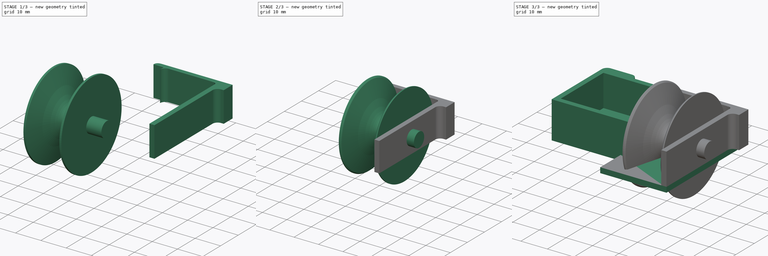
[diagram: build sequence overview — one tinted view per stage of 3, left to right]
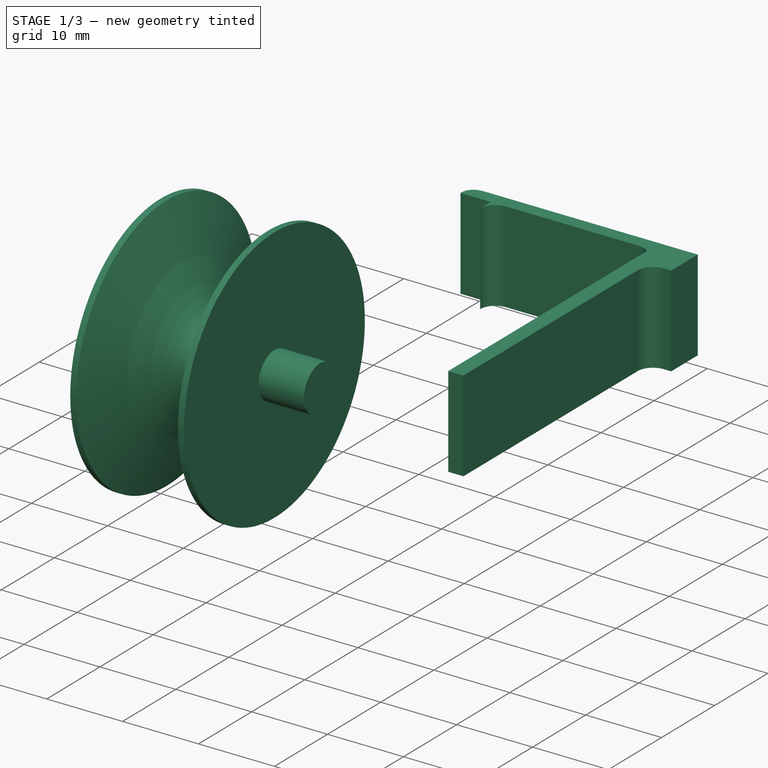
[diagram: stage 1 of 3 — iso view after this stage's code; geometry added in this stage tinted green]
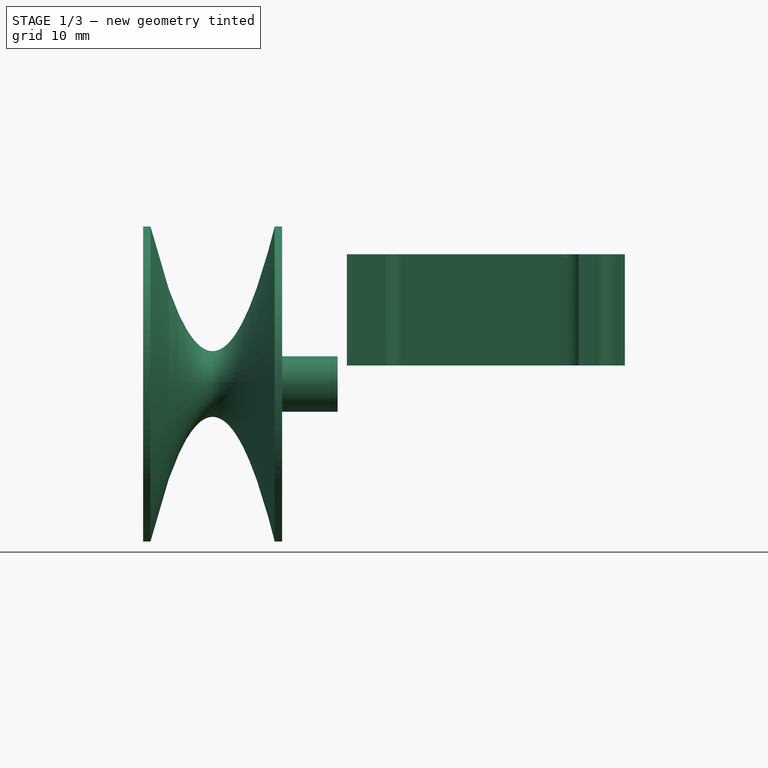
[diagram: stage 1 of 3 — front view after this stage's code; geometry added in this stage tinted green]
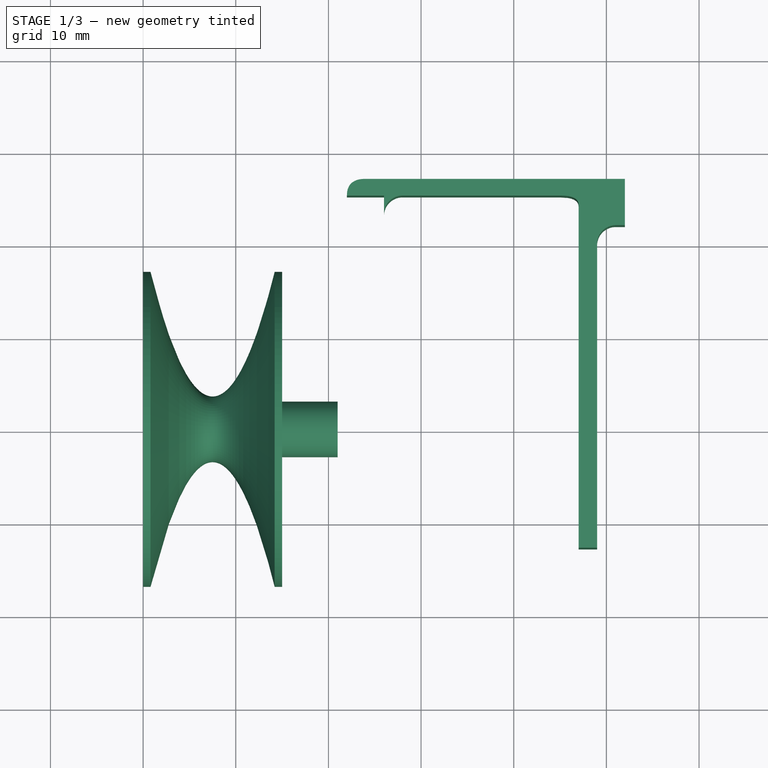
[diagram: stage 1 of 3 — top view after this stage's code; geometry added in this stage tinted green]
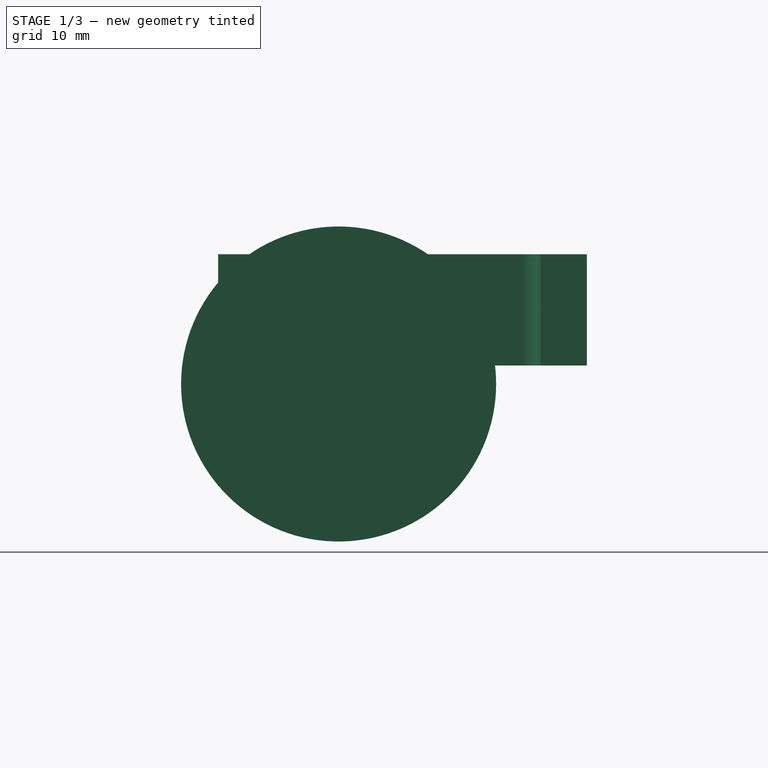
[diagram: stage 1 of 3 — right view after this stage's code; geometry added in this stage tinted green]
FCSTD DOCUMENT  (FreeCAD 0.20R0.20)
Label: 013
License: All rights reserved
LicenseURL: http://en.wikipedia.org/wiki/All_rights_reserved
objects: Sketcher::SketchObject×4, Part::Extrusion×3, Part::Revolution×1, Part::Chamfer×1
note: 9 computed .brp shape members not serialized (recipe doc carries the construction recipe); baked Part::Feature solids carry a one-line shape summary decoded from their .brp

FEATURE [Sketcher::SketchObject] Sketch002  label="pully"
  FullyConstrained = true
  sketch-geometry (14):
    g0: LineSegment StartX=0 StartY=0 StartZ=0 EndX=15 EndY=0 EndZ=0
    g1: LineSegment StartX=0 StartY=0 StartZ=0 EndX=0 EndY=17 EndZ=0
    g2: LineSegment StartX=0 StartY=17 StartZ=0 EndX=0.8 EndY=17 EndZ=0
    g3: LineSegment StartX=15 StartY=17 StartZ=0 EndX=14.2 EndY=17 EndZ=0
    g4: Circle CenterX=0.8 CenterY=17 CenterZ=0 NormalX=0 NormalY=0 NormalZ=1 AngleXU=0 Radius=1
    g5: Circle CenterX=7.5 CenterY=-9.9 CenterZ=0 NormalX=0 NormalY=0 NormalZ=1 AngleXU=0 Radius=1
    g6: Circle CenterX=14.2 CenterY=17 CenterZ=0 NormalX=0 NormalY=0 NormalZ=1 AngleXU=0 Radius=1
    g7: BSplineCurve PolesCount=3 KnotsCount=2 Degree=2 IsPeriodic=0
    g8: GeomPoint X=0.8 Y=17 Z=0
    g9: GeomPoint X=14.2 Y=17 Z=0
    g10: LineSegment StartX=15 StartY=17 StartZ=0 EndX=15 EndY=3 EndZ=0
    g11: LineSegment StartX=15 StartY=0 StartZ=0 EndX=21 EndY=0 EndZ=0
    g12: LineSegment StartX=15 StartY=3 StartZ=0 EndX=21 EndY=3 EndZ=0
    g13: LineSegment StartX=21 StartY=3 StartZ=0 EndX=21 EndY=0 EndZ=0
  constraints (34):
    c: Coincident(g0,g-1)
    c: PointOnObject(g0,g-1)
    c: Distance(g0) = 15
    c: Coincident(g1,g0)
    c: Vertical(g1)
    c: Distance(g1) = 17
    c: Coincident(g2,g1)
    c: Horizontal(g2)
    c: Distance(g2) = 0.8
    c: Horizontal(g3)
    c: Distance(g3) = 0.8
    c: Weight(g4) = 1
    c: Coincident(g7,g2)
    c: Equal(g4,g5)
    c: Equal(g4,g6)
    c: Coincident(g7,g3)
    c: InternalAlignment(g4,g7)
    c: InternalAlignment(g5,g7)
    c: InternalAlignment(g6,g7)
    c: InternalAlignment(g8,g7)
    c: InternalAlignment(g9,g7)
    c: Block(g7)
    c: Coincident(g10,g3)
    c: Vertical(g10)
    c: Coincident(g11,g0)
    c: Horizontal(g11)
    c: Block(g10)
    c: Coincident(g12,g10)
    c: Horizontal(g12)
    c: Distance(g12) = 6
    c: Distance(g11) = 6
    c: Coincident(g13,g12)
    c: Coincident(g13,g11)
    c: Vertical(g13)
FEATURE [Part::Revolution] Revolve  label="pully001"
  Angle = 360
  Axis = (1,0,0)
  Base = (0,0,0)
  FaceMakerClass = Part::FaceMakerBullseye
  Solid = true
  Source = -> Sketch002
  Symmetric = false
FEATURE [Sketcher::SketchObject] Sketch003  label="pullyHolderAndSprintBarrier"
  FullyConstrained = true
  sketch-geometry (23):
    g0: Circle CenterX=21.9972 CenterY=25 CenterZ=0 NormalX=0 NormalY=0 NormalZ=1 AngleXU=0 Radius=1
    g1: Circle CenterX=21.9972 CenterY=26.8 CenterZ=0 NormalX=0 NormalY=0 NormalZ=1 AngleXU=0 Radius=1
    g2: Circle CenterX=23.9972 CenterY=26.8 CenterZ=0 NormalX=0 NormalY=0 NormalZ=1 AngleXU=0 Radius=1
    g3: BSplineCurve PolesCount=3 KnotsCount=2 Degree=2 IsPeriodic=0
    g4: GeomPoint X=21.9972 Y=25 Z=0
    g5: GeomPoint X=23.9972 Y=26.8 Z=0
    g6: ArcOfCircle CenterX=27.9972 CenterY=23 CenterZ=0 NormalX=0 NormalY=0 NormalZ=1 AngleXU=0 Radius=2 StartAngle=1.5708 EndAngle=3.14159
    g7: Circle CenterX=44.9972 CenterY=25 CenterZ=0 NormalX=0 NormalY=0 NormalZ=1 AngleXU=0 Radius=1
    g8: Circle CenterX=46.9972 CenterY=25 CenterZ=0 NormalX=0 NormalY=0 NormalZ=1 AngleXU=0 Radius=1
    g9: Circle CenterX=46.9972 CenterY=24 CenterZ=0 NormalX=0 NormalY=0 NormalZ=1 AngleXU=0 Radius=1
    g10: BSplineCurve PolesCount=3 KnotsCount=2 Degree=2 IsPeriodic=0
    g11: GeomPoint X=44.9972 Y=25 Z=0
    g12: GeomPoint X=46.9972 Y=24 Z=0
    g13: LineSegment StartX=46.9972 StartY=-13 StartZ=0 EndX=48.9972 EndY=-13 EndZ=0
    g14: LineSegment StartX=23.9972 StartY=26.8 StartZ=0 EndX=51.9972 EndY=26.8 EndZ=0
    g15: LineSegment StartX=21.9972 StartY=25 StartZ=0 EndX=25.9972 EndY=25 EndZ=0
    g16: LineSegment StartX=25.9972 StartY=25 StartZ=0 EndX=25.9972 EndY=23 EndZ=0
    g17: LineSegment StartX=44.9972 StartY=25 StartZ=0 EndX=27.9972 EndY=25 EndZ=0
    g18: LineSegment StartX=46.9972 StartY=24 StartZ=0 EndX=46.9972 EndY=-13 EndZ=0
    g19: LineSegment StartX=51.9972 StartY=26.8 StartZ=0 EndX=51.9972 EndY=21.8 EndZ=0
    g20: ArcOfCircle CenterX=50.9972 CenterY=19.8 CenterZ=0 NormalX=0 NormalY=0 NormalZ=1 AngleXU=0 Radius=2 StartAngle=1.5708 EndAngle=3.14159
    g21: LineSegment StartX=50.9972 StartY=21.8 StartZ=0 EndX=51.9972 EndY=21.8 EndZ=0
    g22: LineSegment StartX=48.9972 StartY=19.8 StartZ=0 EndX=48.9972 EndY=-13 EndZ=0
  constraints (46):
    c: Weight(g0) = 1
    c: Equal(g0,g1)
    c: Equal(g0,g2)
    c: InternalAlignment(g0,g3)
    c: InternalAlignment(g1,g3)
    c: InternalAlignment(g2,g3)
    c: InternalAlignment(g4,g3)
    c: InternalAlignment(g5,g3)
    c: Block(g3)
    c: Block(g6)
    c: Weight(g7) = 1
    c: Equal(g7,g8)
    c: Equal(g7,g9)
    c: InternalAlignment(g7,g10)
    c: InternalAlignment(g8,g10)
    c: InternalAlignment(g9,g10)
    c: InternalAlignment(g11,g10)
    c: InternalAlignment(g12,g10)
    c: Block(g10)
    c: Horizontal(g13)
    c: Coincident(g14,g3)
    c: Horizontal(g14)
    c: Block(g14)
    c: Coincident(g15,g3)
    c: Horizontal(g15)
    c: Block(g15)
    c: Coincident(g16,g15)
    c: Coincident(g16,g6)
    c: Vertical(g16)
    c: Coincident(g17,g10)
    c: Coincident(g17,g6)
    c: Horizontal(g17)
    c: Coincident(g18,g10)
    c: Coincident(g18,g13)
    c: Vertical(g18)
    c: Block(g13)
    c: Coincident(g19,g14)
    c: Vertical(g19)
    c: Block(g20)
    c: Block(g19)
    c: Coincident(g21,g20)
    c: Coincident(g21,g19)
    c: Horizontal(g21)
    c: Coincident(g22,g20)
    c: Coincident(g22,g13)
    c: Vertical(g22)
FEATURE [Part::Extrusion] Extrude002  label="pullyHolderAndSprintBarrier001"
  Base = -> Sketch003
  Dir = (0,0,1)
  DirMode = 2
  FaceMakerClass = Part::FaceMakerBullseye
  LengthFwd = 12
  LengthRev = 0
  Placement = pos=(0,0,2) rot=(0,0,1;0rad)
  Solid = true
  Symmetric = false
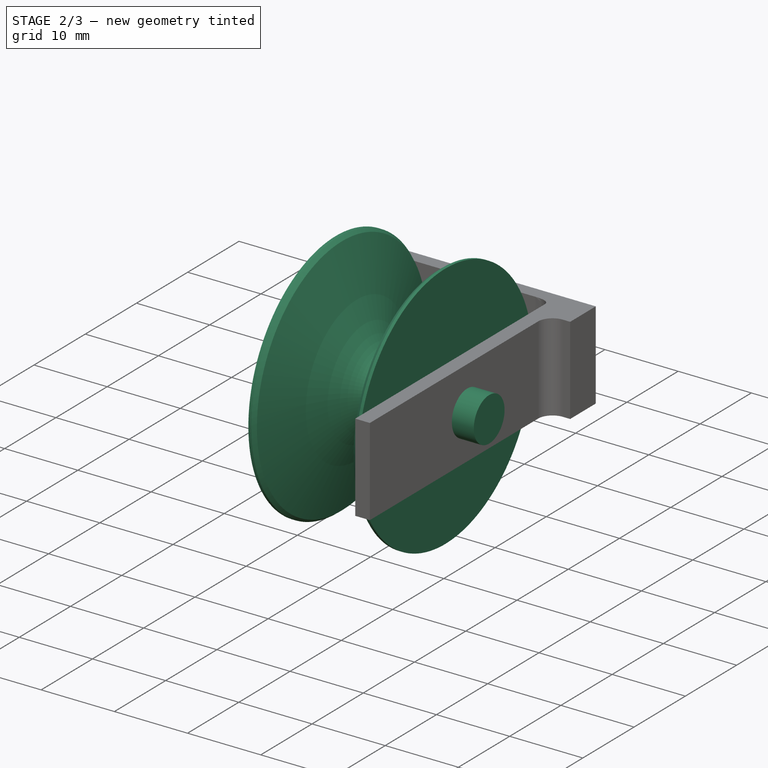
[diagram: stage 2 of 3 — iso view after this stage's code; geometry added in this stage tinted green]
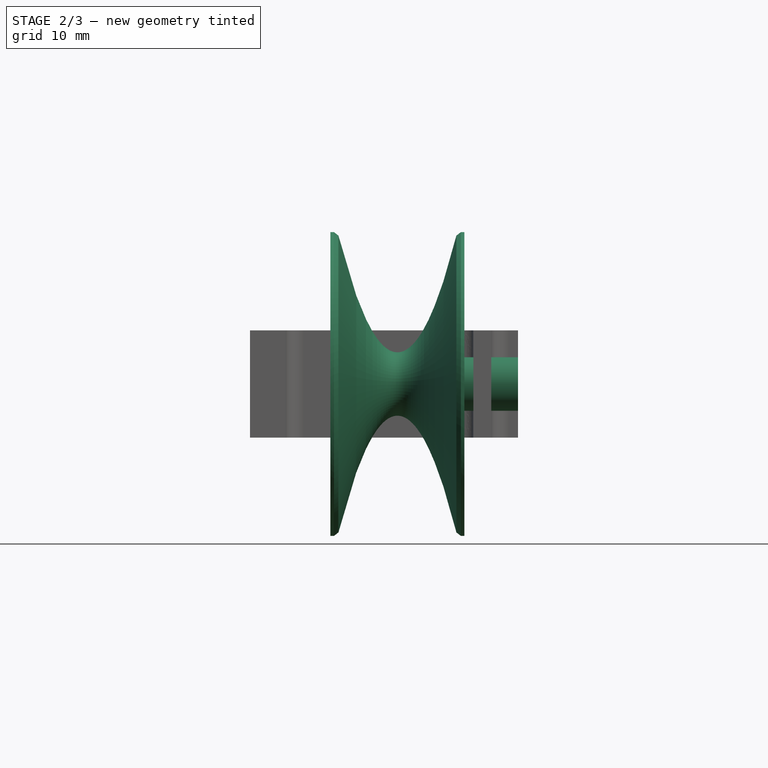
[diagram: stage 2 of 3 — front view after this stage's code; geometry added in this stage tinted green]
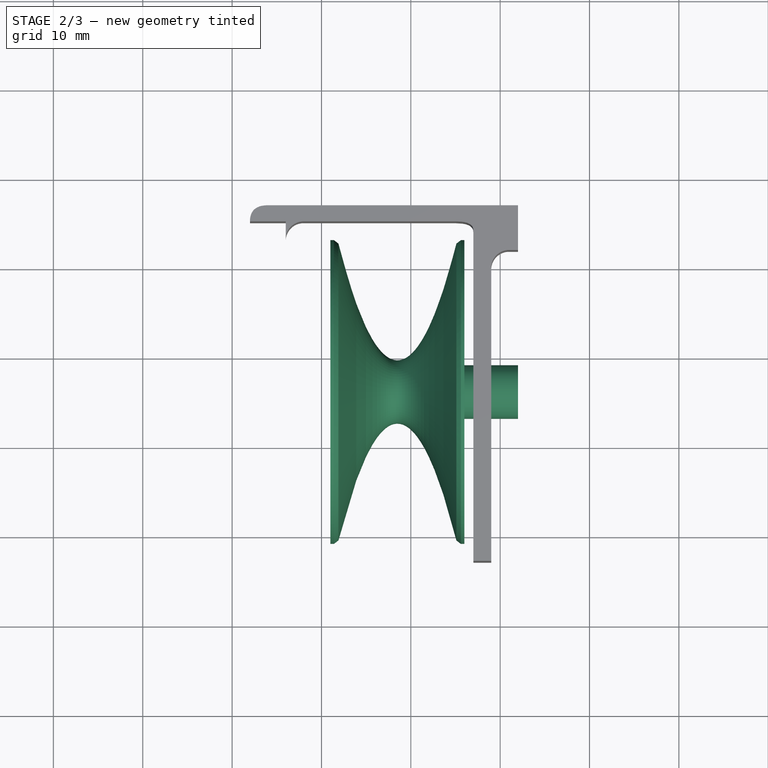
[diagram: stage 2 of 3 — top view after this stage's code; geometry added in this stage tinted green]
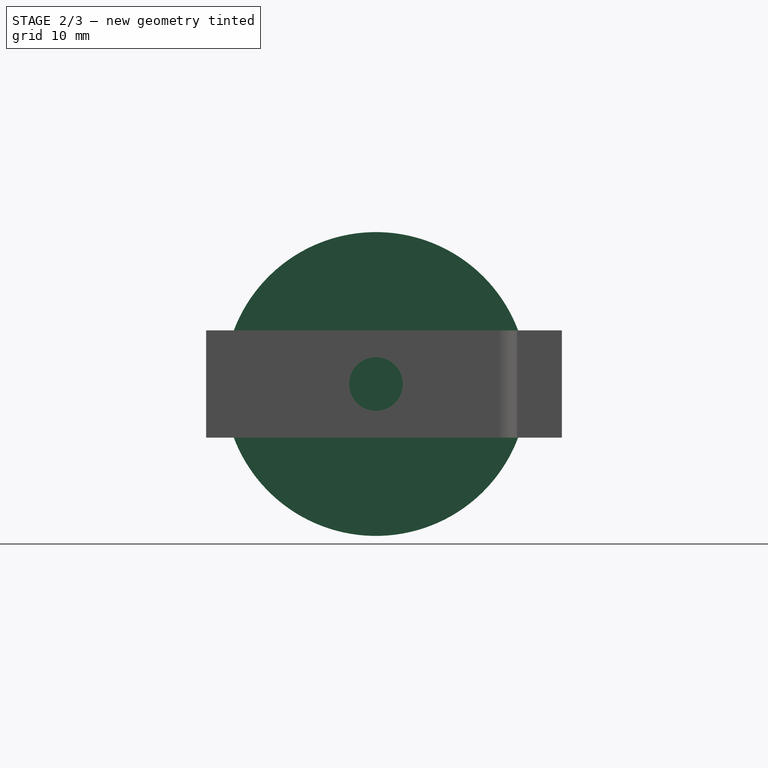
[diagram: stage 2 of 3 — right view after this stage's code; geometry added in this stage tinted green]
FEATURE [Part::Chamfer] Chamfer  label="pully002"
  Base = -> Revolve
  Edges = 2 edges r=0.4: [Edge2,Edge4]
  Placement = pos=(31,6,8) rot=(0,0,1;0rad)
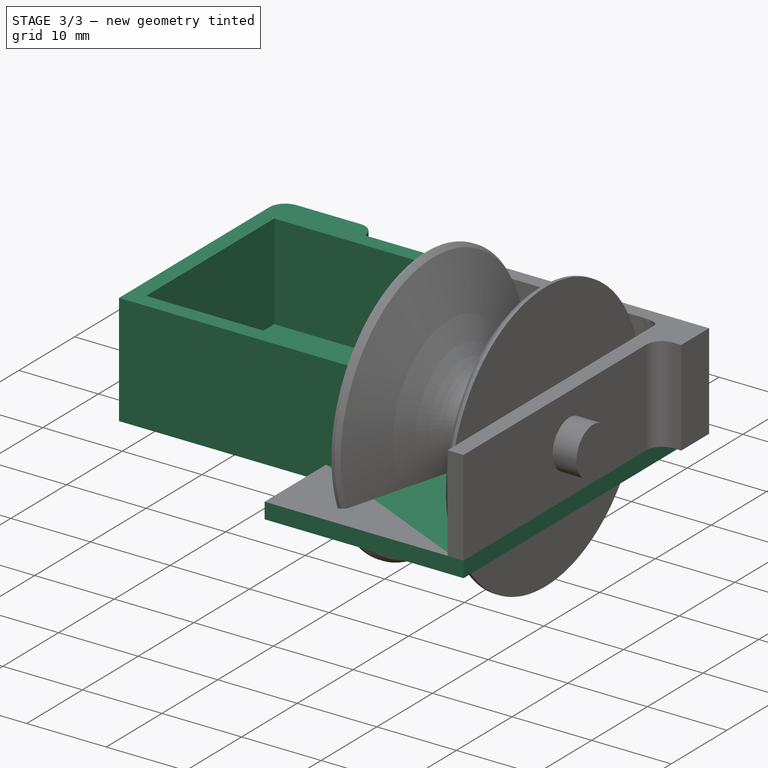
[diagram: stage 3 of 3 — iso view after this stage's code; geometry added in this stage tinted green]
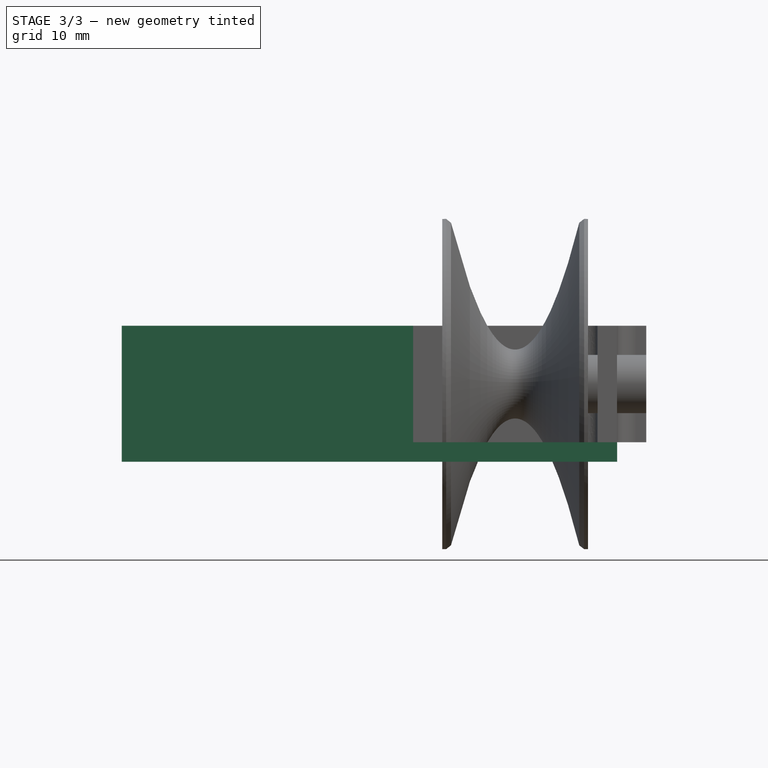
[diagram: stage 3 of 3 — front view after this stage's code; geometry added in this stage tinted green]
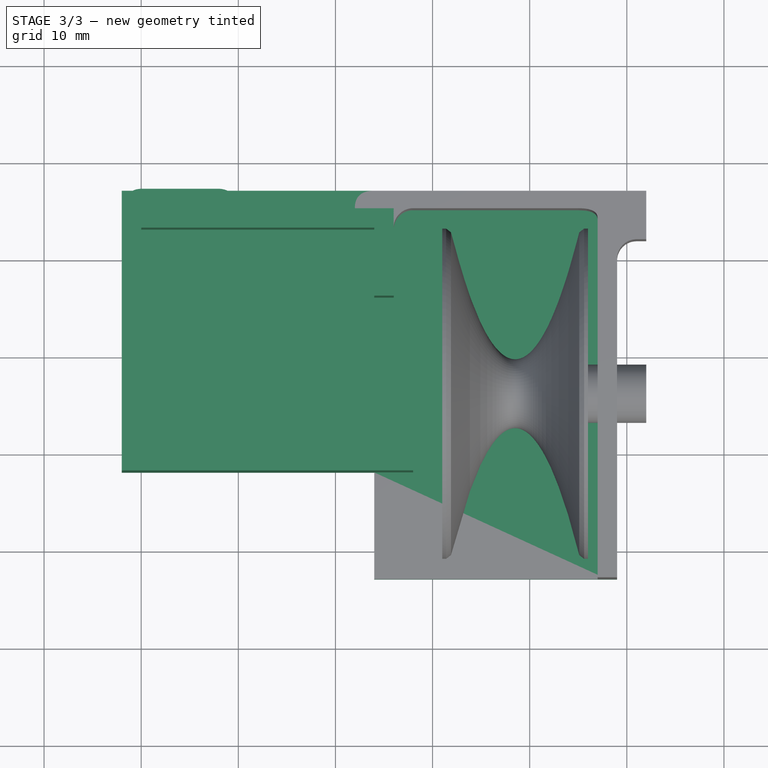
[diagram: stage 3 of 3 — top view after this stage's code; geometry added in this stage tinted green]
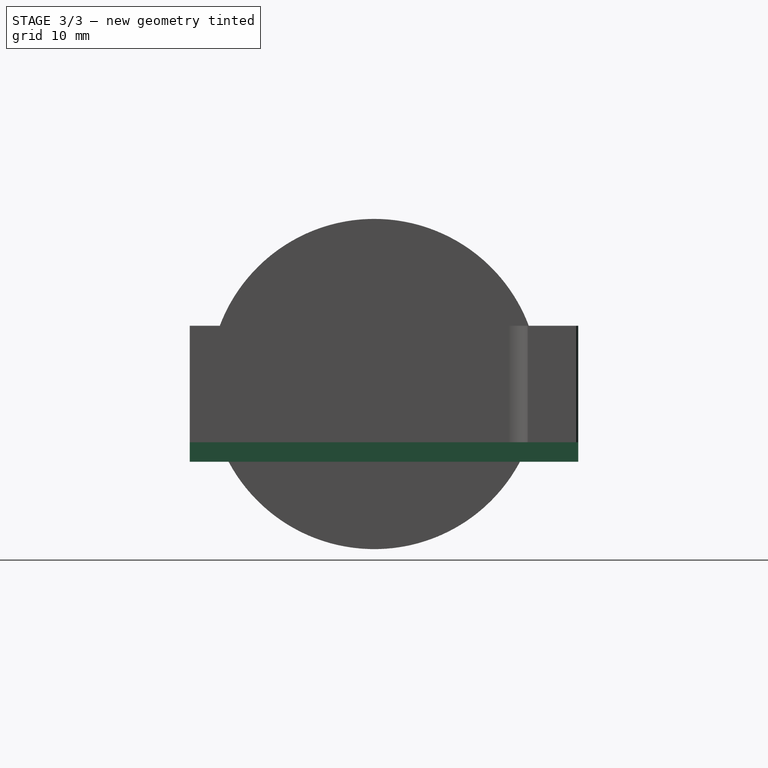
[diagram: stage 3 of 3 — right view after this stage's code; geometry added in this stage tinted green]
FEATURE [Sketcher::SketchObject] Sketch  label="servoHolder001"
  FullyConstrained = true
  sketch-geometry (13):
    g0: LineSegment StartX=0 StartY=0 StartZ=0 EndX=0 EndY=23 EndZ=0
    g1: LineSegment StartX=0 StartY=0 StartZ=0 EndX=28 EndY=0 EndZ=0
    g2: LineSegment StartX=0 StartY=23 StartZ=0 EndX=24 EndY=23 EndZ=0
    g3: LineSegment StartX=24 StartY=23 StartZ=0 EndX=24 EndY=16 EndZ=0
    g4: LineSegment StartX=28 StartY=0 StartZ=0 EndX=28 EndY=-2 EndZ=0
    g5: LineSegment StartX=28 StartY=-2 StartZ=0 EndX=-2 EndY=-2 EndZ=0
    g6: LineSegment StartX=-2 StartY=-2 StartZ=0 EndX=-2 EndY=25 EndZ=0
    g7: LineSegment StartX=10 StartY=25 StartZ=0 EndX=26 EndY=25 EndZ=0
    g8: LineSegment StartX=26 StartY=25 StartZ=0 EndX=26 EndY=16 EndZ=0
    g9: LineSegment StartX=24 StartY=16 StartZ=0 EndX=26 EndY=16 EndZ=0
    g10: LineSegment StartX=0 StartY=27 StartZ=0 EndX=8 EndY=27 EndZ=0
    g11: ArcOfCircle CenterX=0 CenterY=25 CenterZ=0 NormalX=0 NormalY=0 NormalZ=1 AngleXU=0 Radius=2 StartAngle=1.5708 EndAngle=3.14159
    g12: ArcOfCircle CenterX=8 CenterY=25 CenterZ=0 NormalX=0 NormalY=0 NormalZ=1 AngleXU=0 Radius=2 StartAngle=0 EndAngle=1.5708
  constraints (37):
    c: Coincident(g0,g-1)
    c: Vertical(g0)
    c: Distance(g0) = 23
    c: Coincident(g1,g0)
    c: Horizontal(g1)
    c: Distance(g1) = 28
    c: Coincident(g2,g0)
    c: Horizontal(g2)
    c: Block(g2)
    c: Block(g0)
    c: Block(g1)
    c: Coincident(g3,g2)
    c: Vertical(g3)
    c: Distance(g3) = 7
    c: Coincident(g4,g1)
    c: Vertical(g4)
    c: Distance(g4) = 2
    c: Coincident(g5,g4)
    c: Horizontal(g5)
    c: Distance(g5) = 30
    c: Coincident(g6,g5)
    c: Vertical(g6)
    c: Distance(g6) = 27
    c: Horizontal(g7)
    c: Coincident(g8,g7)
    c: Vertical(g8)
    c: Coincident(g9,g3)
    c: Horizontal(g9)
    c: Coincident(g8,g9)
    c: Horizontal(g10)
    c: Distance(g10) = 8
    c: Coincident(g11,g6)
    c: Coincident(g12,g10)
    c: Block(g12)
    c: Block(g11)
    c: PointOnObject(g7,g12)
    c: Block(g7)
FEATURE [Part::Extrusion] Extrude  label="servoHolder"
  Base = -> Sketch
  Dir = (0,0,1)
  DirMode = 2
  FaceMakerClass = Part::FaceMakerBullseye
  LengthFwd = 12
  LengthRev = 0
  Placement = pos=(0,0,2) rot=(0,0,1;0rad)
  Solid = true
  Symmetric = false
FEATURE [Sketcher::SketchObject] Sketch001  label="servoHolderBase"
  FullyConstrained = true
  sketch-geometry (9):
    g0: LineSegment StartX=24 StartY=-2 StartZ=0 EndX=-2 EndY=-2 EndZ=0
    g1: LineSegment StartX=-2 StartY=-2 StartZ=0 EndX=-2 EndY=25 EndZ=0
    g2: LineSegment StartX=24 StartY=-2 StartZ=0 EndX=24 EndY=-13 EndZ=0
    g3: LineSegment StartX=24 StartY=-13 StartZ=0 EndX=48 EndY=-13 EndZ=0
    g4: LineSegment StartX=-2 StartY=25 StartZ=0 EndX=-2 EndY=27 EndZ=0
    g5: LineSegment StartX=-2 StartY=27 StartZ=0 EndX=48 EndY=27 EndZ=0
    g6: LineSegment StartX=48 StartY=-13 StartZ=0 EndX=49 EndY=-13 EndZ=0
    g7: LineSegment StartX=49 StartY=-13 StartZ=0 EndX=49 EndY=27 EndZ=0
    g8: LineSegment StartX=48 StartY=27 StartZ=0 EndX=49 EndY=27 EndZ=0
  constraints (24):
    c: Horizontal(g0)
    c: Coincident(g1,g0)
    c: Vertical(g1)
    c: Distance(g1) = 27
    c: Vertical(g2)
    c: Coincident(g3,g2)
    c: Horizontal(g3)
    c: Coincident(g2,g0)
    c: Coincident(g4,g1)
    c: Vertical(g4)
    c: Distance(g4) = 2
    c: Coincident(g5,g4)
    c: Horizontal(g5)
    c: Block(g5)
    c: Block(g0)
    c: Horizontal(g6)
    c: Distance(g6) = 1
    c: Coincident(g7,g6)
    c: Vertical(g7)
    c: Block(g6)
    c: Block(g3)
    c: Coincident(g8,g5)
    c: Horizontal(g8)
    c: Coincident(g8,g7)
FEATURE [Part::Extrusion] Extrude001  label="servoHolderBase001"
  Base = -> Sketch001
  Dir = (0,0,1)
  DirMode = 2
  FaceMakerClass = Part::FaceMakerBullseye
  LengthFwd = 2
  LengthRev = 0
  Solid = true
  Symmetric = false
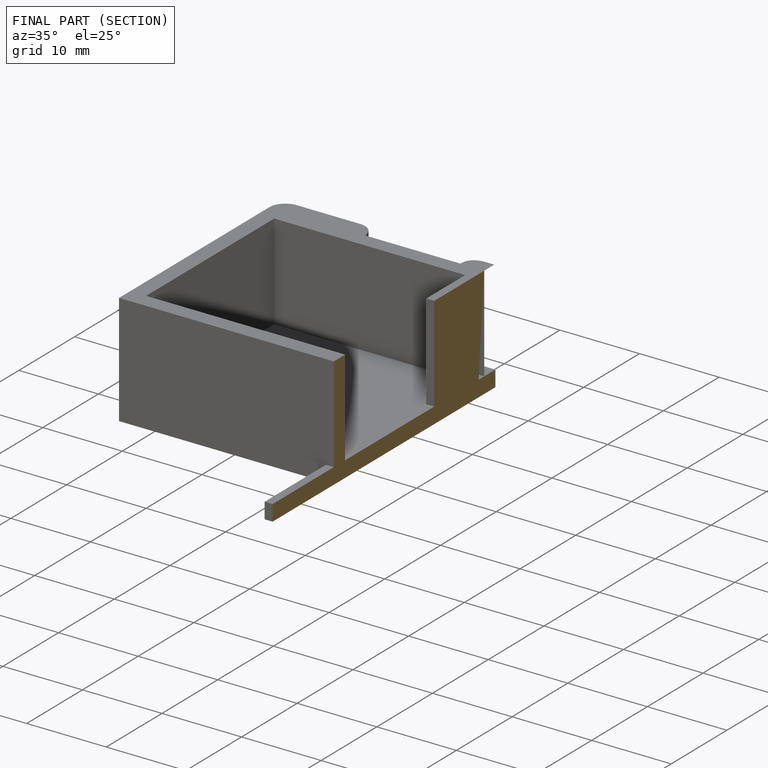
[diagram: finished part — half-section view (interior)]
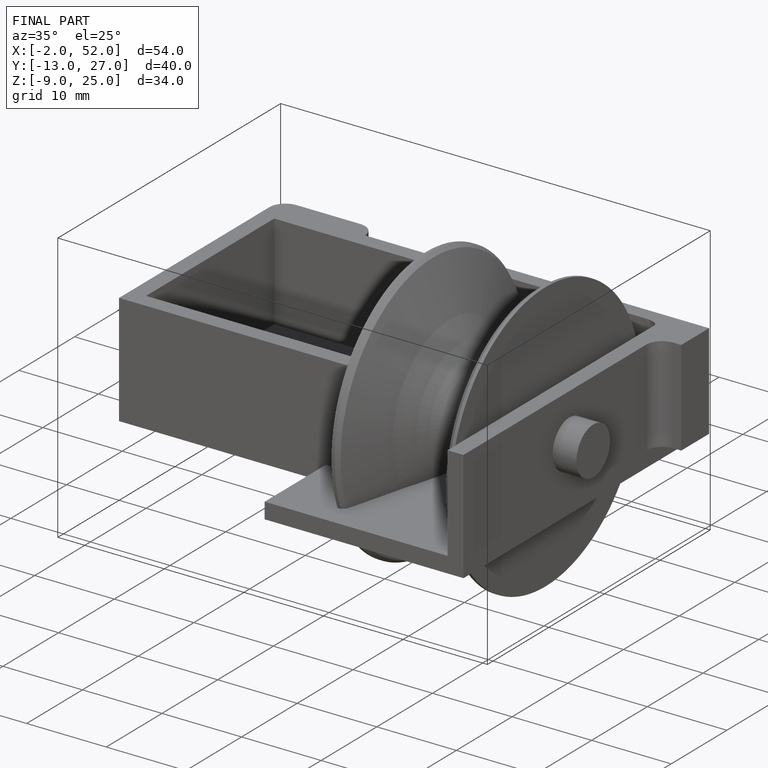
[diagram: finished part — iso view with bounding-box wireframe]
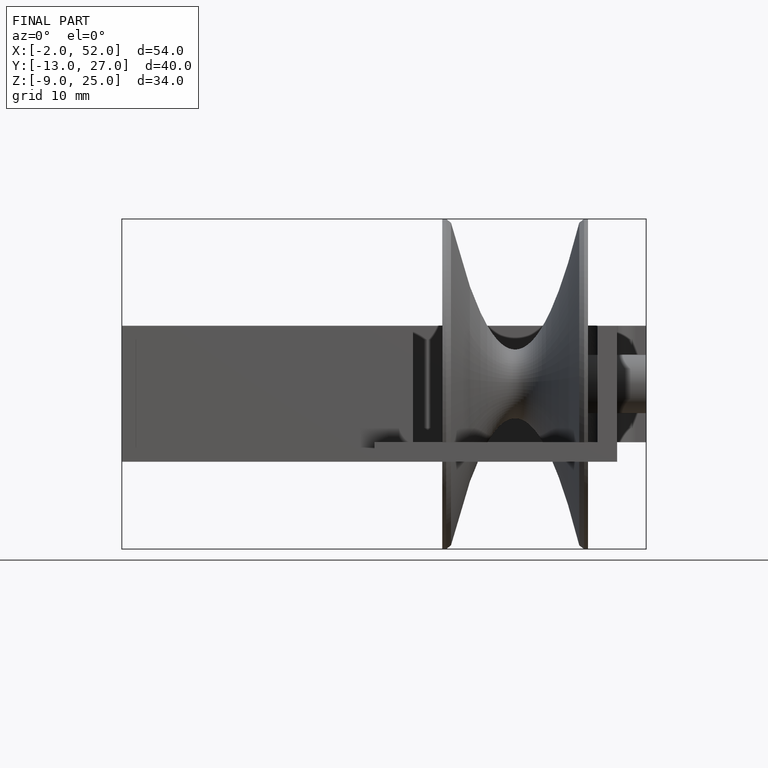
[diagram: finished part — front view with bounding-box wireframe]
